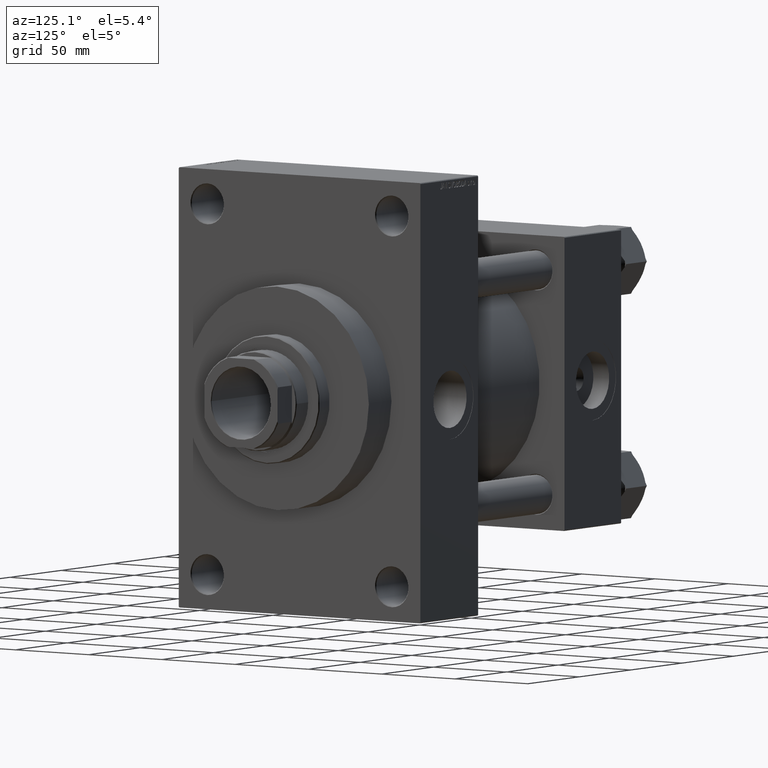
[diagram: clean part render]
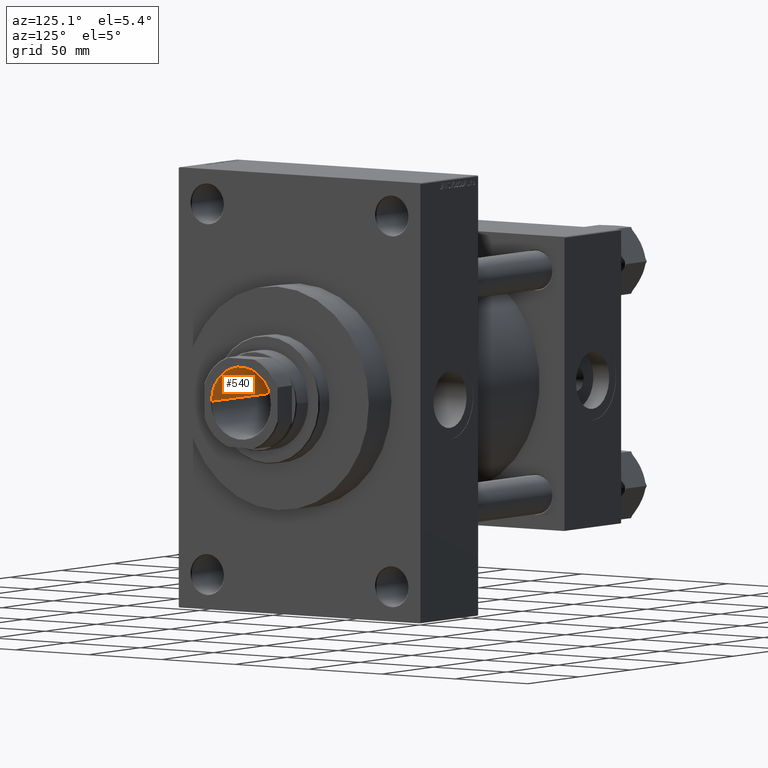
[diagram: same view with one face highlighted and labeled with its STEP entity id]
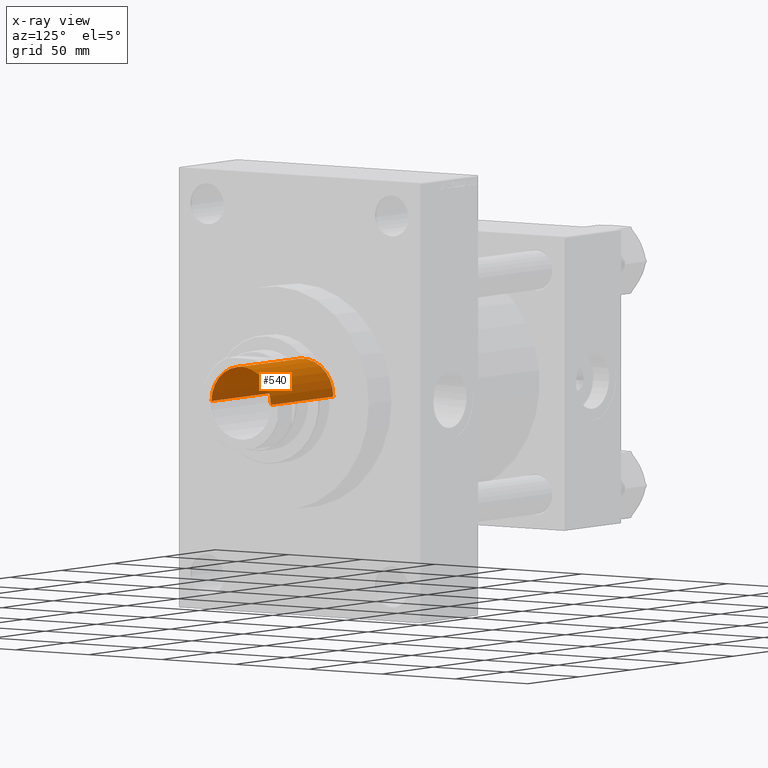
[diagram: x-ray of the same camera — body ghosted, the highlighted face saturated]
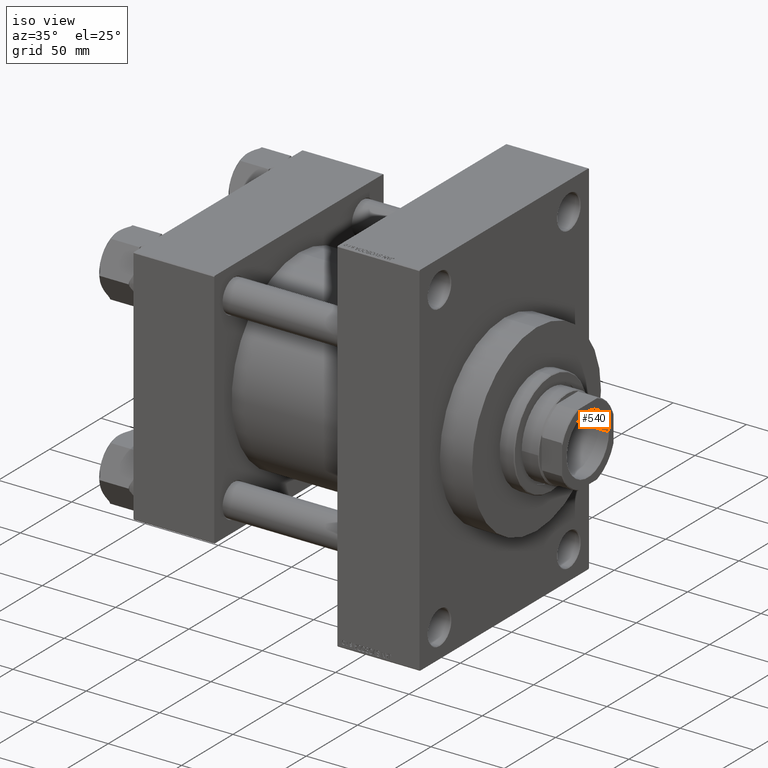
[diagram: same view with one face highlighted and labeled with its STEP entity id]
A machine part, auxiliary view. The second image highlights one B-rep face of the part: STEP entity #540.
The next image is the same camera in x-ray: the body ghosted, the highlighted face saturated — about 0% of this face is hidden behind the body in this view.
A second angle (iso view) of the same face is appended — the face is thin or edge-on in the first view.
In plain terms, the highlighted cylindrical surface (edge-blend (fillet) strip) has radius 20.25 mm, axis along (1, 0, 0).
Its self-contained STEP definition (entity closure, byte-faithful):
#540 = ADVANCED_FACE ( 'NONE', ( #10621 ), #32823, .F. ) ;
#2378 = DIRECTION ( 'NONE',  ( -0.000000000000000000, -0.000000000000000000, 1.000000000000000000 ) ) ;
#4390 = DIRECTION ( 'NONE',  ( -0.000000000000000000, -0.000000000000000000, 1.000000000000000000 ) ) ;
#4536 = CARTESIAN_POINT ( 'NONE',  ( -20.24999999999998934, 2.479909768273389117E-15, 136.0000000000000000 ) ) ;
#4607 = CARTESIAN_POINT ( 'NONE',  ( 0.000000000000000000, 0.000000000000000000, 197.0000000000000000 ) ) ;
#5750 = VERTEX_POINT ( 'NONE', #8863 ) ;
#6225 = VERTEX_POINT ( 'NONE', #4536 ) ;
#6553 = DIRECTION ( 'NONE',  ( 0.000000000000000000, 0.000000000000000000, 1.000000000000000000 ) ) ;
#8863 = CARTESIAN_POINT ( 'NONE',  ( 20.24999999999998934, 0.000000000000000000, 136.0000000000000000 ) ) ;
#8925 = CARTESIAN_POINT ( 'NONE',  ( 0.000000000000000000, 0.000000000000000000, 136.0000000000000000 ) ) ;
#9486 = AXIS2_PLACEMENT_3D ( 'NONE', #32111, #6553, #13303 ) ;
#10288 = AXIS2_PLACEMENT_3D ( 'NONE', #8925, #4390, #45362 ) ;
#10621 = FACE_OUTER_BOUND ( 'NONE', #27705, .T. ) ;
#13303 = DIRECTION ( 'NONE',  ( 1.000000000000000000, 0.000000000000000000, 0.000000000000000000 ) ) ;
#13511 = DIRECTION ( 'NONE',  ( -0.000000000000000000, -0.000000000000000000, 1.000000000000000000 ) ) ;
#15717 = CIRCLE ( 'NONE', #10288, 20.24999999999998934 ) ;
#18730 = EDGE_CURVE ( 'NONE', #6225, #5750, #15717, .T. ) ;
#19722 = ORIENTED_EDGE ( 'NONE', *, *, #41921, .F. ) ;
#20217 = ORIENTED_EDGE ( 'NONE', *, *, #18730, .F. ) ;
#21623 = ORIENTED_EDGE ( 'NONE', *, *, #35269, .T. ) ;
#21674 = LINE ( 'NONE', #36409, #27696 ) ;
#25000 = VERTEX_POINT ( 'NONE', #46376 ) ;
#27519 = ORIENTED_EDGE ( 'NONE', *, *, #45485, .T. ) ;
#27696 = VECTOR ( 'NONE', #13511, 1000.000000000000000 ) ;
#27705 = EDGE_LOOP ( 'NONE', ( #20217, #21623, #27519, #19722 ) ) ;
#28561 = AXIS2_PLACEMENT_3D ( 'NONE', #4607, #44399, #33794 ) ;
#29142 = CARTESIAN_POINT ( 'NONE',  ( 20.24999999999999289, 0.000000000000000000, 197.0000000000000000 ) ) ;
#32111 = CARTESIAN_POINT ( 'NONE',  ( 0.000000000000000000, 0.000000000000000000, 196.7000000000001023 ) ) ;
#32772 = LINE ( 'NONE', #29142, #47163 ) ;
#32823 = CYLINDRICAL_SURFACE ( 'NONE', #28561, 20.24999999999999289 ) ;
#33794 = DIRECTION ( 'NONE',  ( 1.000000000000000000, 0.000000000000000000, 0.000000000000000000 ) ) ;
#35269 = EDGE_CURVE ( 'NONE', #6225, #25000, #21674, .T. ) ;
#36409 = CARTESIAN_POINT ( 'NONE',  ( -20.24999999999999289, 2.479909768273389511E-15, 197.0000000000000000 ) ) ;
#38896 = CARTESIAN_POINT ( 'NONE',  ( 20.24999999999999289, 0.000000000000000000, 196.7000000000001023 ) ) ;
#41921 = EDGE_CURVE ( 'NONE', #5750, #42311, #32772, .T. ) ;
#42311 = VERTEX_POINT ( 'NONE', #38896 ) ;
#42626 = CIRCLE ( 'NONE', #9486, 20.24999999999999289 ) ;
#44399 = DIRECTION ( 'NONE',  ( -0.000000000000000000, -0.000000000000000000, 1.000000000000000000 ) ) ;
#45362 = DIRECTION ( 'NONE',  ( 1.000000000000000000, 0.000000000000000000, 0.000000000000000000 ) ) ;
#45485 = EDGE_CURVE ( 'NONE', #25000, #42311, #42626, .T. ) ;
#46376 = CARTESIAN_POINT ( 'NONE',  ( -20.24999999999999289, 2.479909768273389511E-15, 196.7000000000001023 ) ) ;
#47163 = VECTOR ( 'NONE', #2378, 1000.000000000000000 ) ;